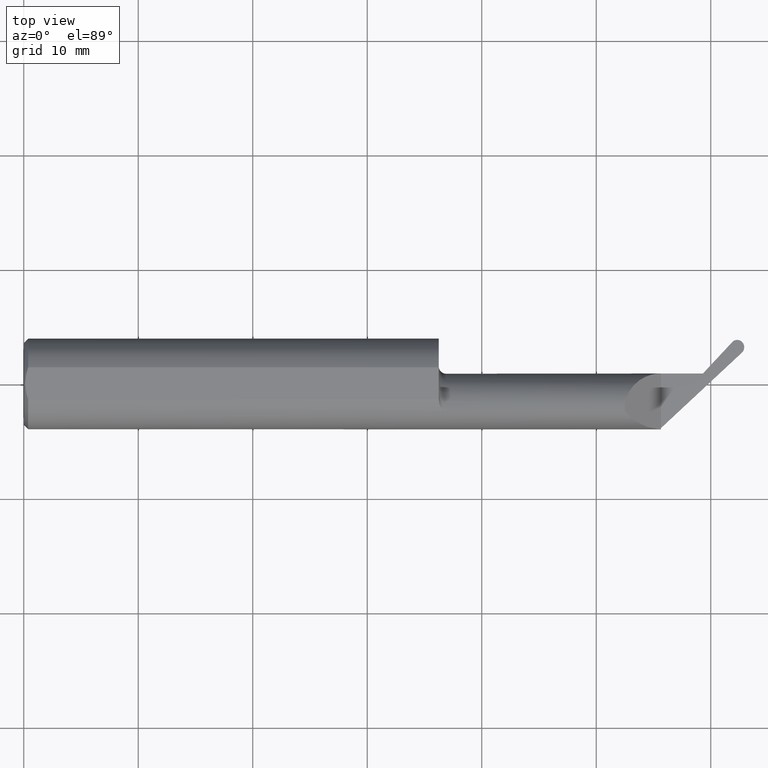
[diagram: clean part render]
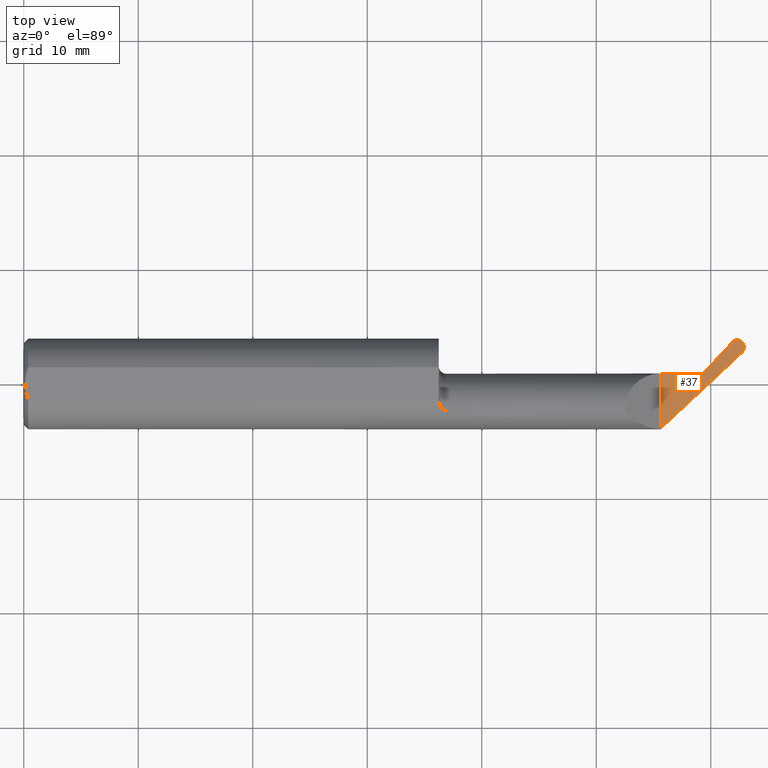
[diagram: same view with one face highlighted and labeled with its STEP entity id]
A machine part, top view. The second image highlights one B-rep face of the part: STEP entity #37.
In plain terms, the highlighted planar face has unit normal (-0, 0, -1).
Its self-contained STEP definition (entity closure, byte-faithful):
#2 = CARTESIAN_POINT ( 'NONE',  ( 2.218639674596863731, -0.08910000000000001252, -4.748720145236707432E-17 ) ) ;
#9 = CARTESIAN_POINT ( 'NONE',  ( 2.474242186244780761, 0.1123115085268938940, -4.748720145236707432E-17 ) ) ;
#14 = CARTESIAN_POINT ( 'NONE',  ( 2.474829513552956772, 0.1379922658341182773, -4.748720145236707432E-17 ) ) ;
#27 = CARTESIAN_POINT ( 'NONE',  ( 2.191000000000000281, 0.2000000000000000111, -4.748720145236707432E-17 ) ) ;
#37 = ADVANCED_FACE ( 'NONE', ( #670 ), #85, .F. ) ;
#42 = AXIS2_PLACEMENT_3D ( 'NONE', #92, #667, #160 ) ;
#50 = CARTESIAN_POINT ( 'NONE',  ( 2.335204060364073353, 0.03590000000000036218, 1.707404996040164561E-15 ) ) ;
#52 = VERTEX_POINT ( 'NONE', #607 ) ;
#60 = CARTESIAN_POINT ( 'NONE',  ( 2.476849374532685832, 0.1335931695970355715, -4.748720145236707432E-17 ) ) ;
#69 = CARTESIAN_POINT ( 'NONE',  ( 1.426999999999999824, 0.03589999999999989727, -4.748720145236707432E-17 ) ) ;
#85 = PLANE ( 'NONE',  #42 ) ;
#92 = CARTESIAN_POINT ( 'NONE',  ( 1.551165436233184813, 0.2000000000000000111, -4.748720145236707432E-17 ) ) ;
#112 = CARTESIAN_POINT ( 'NONE',  ( 2.469210119712022422, 0.1076038187258366308, 0.000000000000000000 ) ) ;
#121 = CARTESIAN_POINT ( 'NONE',  ( 2.472230964925945518, 0.1421255133808494442, -4.748720145236706816E-17 ) ) ;
#130 = VECTOR ( 'NONE', #383, 39.37007874015748143 ) ;
#160 = DIRECTION ( 'NONE',  ( -1.000000000000000000, 0.000000000000000000, 0.000000000000000000 ) ) ;
#179 = CARTESIAN_POINT ( 'NONE',  ( 2.473176943833145902, 0.1408111254755286812, -4.748720145236708048E-17 ) ) ;
#188 = CARTESIAN_POINT ( 'NONE',  ( 2.435924877925914611, 0.1439098532014193854, -4.748720145236707432E-17 ) ) ;
#190 = VERTEX_POINT ( 'NONE', #677 ) ;
#195 = DIRECTION ( 'NONE',  ( 1.000000000000000000, 7.764387408964029902E-17, 0.000000000000000000 ) ) ;
#236 = DIRECTION ( 'NONE',  ( 0.6819983600625070252, 0.7313537016191623552, 0.000000000000000000 ) ) ;
#241 = VERTEX_POINT ( 'NONE', #112 ) ;
#250 = CARTESIAN_POINT ( 'NONE',  ( 2.469210119712022422, 0.1076038187258366308, 0.000000000000000000 ) ) ;
#306 = CARTESIAN_POINT ( 'NONE',  ( 2.440804894978326089, 0.1491262653164801555, -4.748720145236707432E-17 ) ) ;
#316 = ORIENTED_EDGE ( 'NONE', *, *, #597, .T. ) ;
#365 = EDGE_CURVE ( 'NONE', #52, #533, #582, .T. ) ;
#369 = LINE ( 'NONE', #27, #130 ) ;
#383 = DIRECTION ( 'NONE',  ( 0.000000000000000000, 1.000000000000000000, 0.000000000000000000 ) ) ;
#386 = CARTESIAN_POINT ( 'NONE',  ( 2.435924877925914611, 0.1439098532014193854, -4.748720145236707432E-17 ) ) ;
#412 = VERTEX_POINT ( 'NONE', #386 ) ;
#414 = B_SPLINE_CURVE_WITH_KNOTS ( 'NONE', 3,
 ( #250, #9, #481, #578, #60, #14, #179, #121, #473, #630, #528, #306, #188 ),
 .UNSPECIFIED., .F., .F.,
 ( 4, 2, 1, 2, 2, 2, 4 ),
 ( 0.000000000000000000, 0.2500000000000133782, 0.3750000000000200950, 0.4375000000000234257, 0.5000000000000267564, 0.7500000000000133227, 1.000000000000000000 ),
 .UNSPECIFIED. ) ;
#416 = VECTOR ( 'NONE', #621, 39.37007874015748854 ) ;
#439 = VECTOR ( 'NONE', #236, 39.37007874015748854 ) ;
#447 = ORIENTED_EDGE ( 'NONE', *, *, #646, .F. ) ;
#467 = LINE ( 'NONE', #2, #439 ) ;
#473 = CARTESIAN_POINT ( 'NONE',  ( 2.466403042862979067, 0.1487938381864619963, -4.748720145236709281E-17 ) ) ;
#475 = ORIENTED_EDGE ( 'NONE', *, *, #730, .F. ) ;
#481 = CARTESIAN_POINT ( 'NONE',  ( 2.476942040672077461, 0.1181753928112148355, -4.748720145236707432E-17 ) ) ;
#483 = ORIENTED_EDGE ( 'NONE', *, *, #572, .F. ) ;
#508 = LINE ( 'NONE', #746, #416 ) ;
#528 = CARTESIAN_POINT ( 'NONE',  ( 2.446704982433419051, 0.1516890662649014454, -4.748720145236709281E-17 ) ) ;
#533 = VERTEX_POINT ( 'NONE', #50 ) ;
#569 = VECTOR ( 'NONE', #195, 39.37007874015748143 ) ;
#572 = EDGE_CURVE ( 'NONE', #241, #190, #508, .T. ) ;
#578 = CARTESIAN_POINT ( 'NONE',  ( 2.477492254712462483, 0.1286816530350514687, -4.748720145236706200E-17 ) ) ;
#582 = LINE ( 'NONE', #69, #569 ) ;
#597 = EDGE_CURVE ( 'NONE', #241, #412, #414, .T. ) ;
#607 = CARTESIAN_POINT ( 'NONE',  ( 2.191000000000000281, 0.03589999999999998748, -4.748720145236707432E-17 ) ) ;
#621 = DIRECTION ( 'NONE',  ( -0.7313537016191669071, -0.6819983600625022513, 0.000000000000000000 ) ) ;
#630 = CARTESIAN_POINT ( 'NONE',  ( 2.460545298148969273, 0.1515074458284654257, -4.748720145236707432E-17 ) ) ;
#646 = EDGE_CURVE ( 'NONE', #533, #412, #467, .T. ) ;
#667 = DIRECTION ( 'NONE',  ( -0.000000000000000000, 0.000000000000000000, -1.000000000000000000 ) ) ;
#670 = FACE_OUTER_BOUND ( 'NONE', #681, .T. ) ;
#677 = CARTESIAN_POINT ( 'NONE',  ( 2.191000000000000281, -0.1518313150217918961, 0.000000000000000000 ) ) ;
#681 = EDGE_LOOP ( 'NONE', ( #483, #316, #447, #697, #475 ) ) ;
#697 = ORIENTED_EDGE ( 'NONE', *, *, #365, .F. ) ;
#730 = EDGE_CURVE ( 'NONE', #190, #52, #369, .T. ) ;
#746 = CARTESIAN_POINT ( 'NONE',  ( 2.186422395796417728, -0.1560999999999998777, 0.000000000000000000 ) ) ;